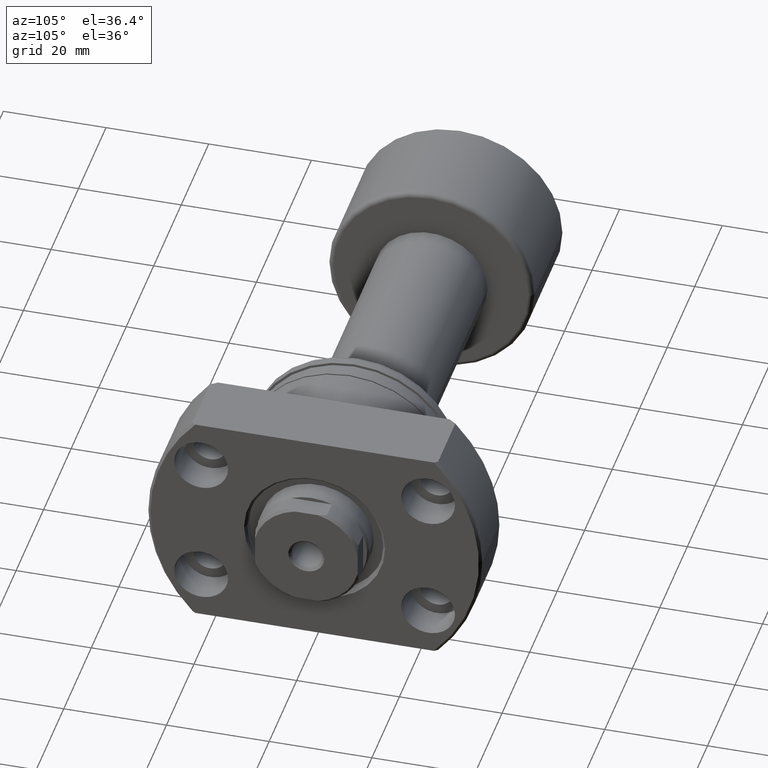
[diagram: clean part render]
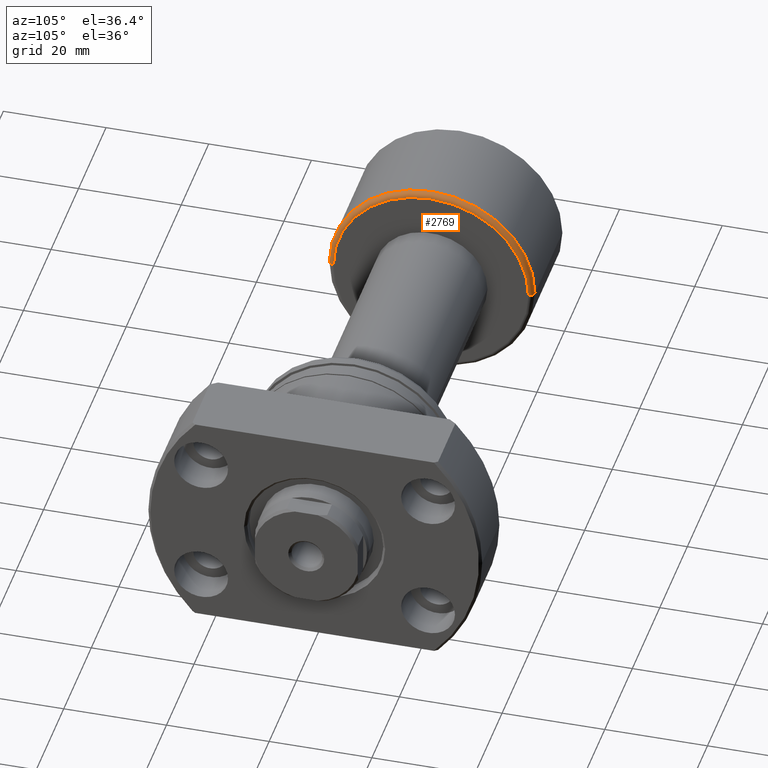
[diagram: same view with one face highlighted and labeled with its STEP entity id]
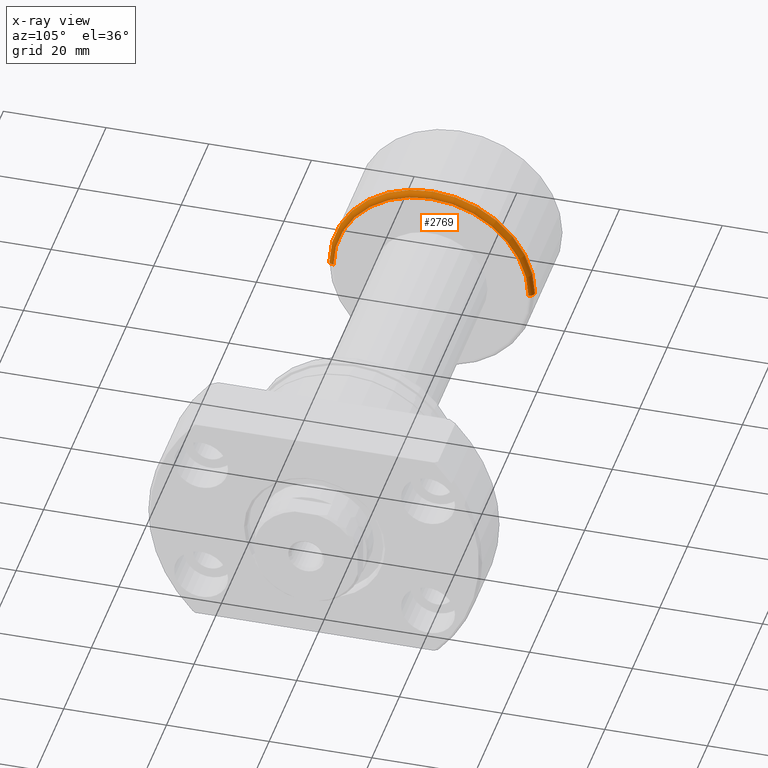
[diagram: x-ray of the same camera — body ghosted, the highlighted face saturated]
A machine part, auxiliary view. The second image highlights one B-rep face of the part: STEP entity #2769.
The next image is the same camera in x-ray: the body ghosted, the highlighted face saturated — about 0% of this face is hidden behind the body in this view.
In plain terms, the highlighted toroidal blend (fillet) surface has major radius 19 mm and minor (blend) radius 1 mm.
Its self-contained STEP definition (entity closure, byte-faithful):
#28 = CIRCLE ( 'NONE', #2680, 1.000000000000000888 ) ;
#157 = VERTEX_POINT ( 'NONE', #2027 ) ;
#429 = VERTEX_POINT ( 'NONE', #2825 ) ;
#492 = DIRECTION ( 'NONE',  ( 0.000000000000000000, 0.000000000000000000, -1.000000000000000000 ) ) ;
#573 = AXIS2_PLACEMENT_3D ( 'NONE', #639, #1639, #1315 ) ;
#587 = CARTESIAN_POINT ( 'NONE',  ( 22.39999999999999503, -19.00000000000000000, 0.000000000000000000 ) ) ;
#588 = ORIENTED_EDGE ( 'NONE', *, *, #1967, .T. ) ;
#624 = EDGE_CURVE ( 'NONE', #1568, #429, #1851, .T. ) ;
#639 = CARTESIAN_POINT ( 'NONE',  ( 21.39999999999999503, 2.288820569227800311E-16, 0.000000000000000000 ) ) ;
#669 = CARTESIAN_POINT ( 'NONE',  ( 21.39999999999999503, 19.00000000000000000, 2.326828918379970970E-15 ) ) ;
#673 = AXIS2_PLACEMENT_3D ( 'NONE', #669, #1671, #2332 ) ;
#700 = AXIS2_PLACEMENT_3D ( 'NONE', #2938, #1152, #3132 ) ;
#713 = ORIENTED_EDGE ( 'NONE', *, *, #624, .T. ) ;
#723 = CARTESIAN_POINT ( 'NONE',  ( 21.39999999999999503, -19.00000000000000000, 0.000000000000000000 ) ) ;
#892 = AXIS2_PLACEMENT_3D ( 'NONE', #1176, #2205, #2927 ) ;
#1152 = DIRECTION ( 'NONE',  ( -1.000000000000000000, -1.069542322069065801E-17, -0.000000000000000000 ) ) ;
#1176 = CARTESIAN_POINT ( 'NONE',  ( 21.39999999999999503, 0.000000000000000000, 0.000000000000000000 ) ) ;
#1315 = DIRECTION ( 'NONE',  ( 0.000000000000000000, -1.000000000000000000, 0.000000000000000000 ) ) ;
#1385 = ORIENTED_EDGE ( 'NONE', *, *, #3087, .F. ) ;
#1435 = EDGE_CURVE ( 'NONE', #1568, #2920, #28, .T. ) ;
#1568 = VERTEX_POINT ( 'NONE', #587 ) ;
#1639 = DIRECTION ( 'NONE',  ( -1.000000000000000000, -1.069542322069065801E-17, -0.000000000000000000 ) ) ;
#1659 = EDGE_LOOP ( 'NONE', ( #713, #588, #1385, #2876 ) ) ;
#1671 = DIRECTION ( 'NONE',  ( 1.309811581274509052E-33, -1.224646799147353207E-16, 1.000000000000000000 ) ) ;
#1851 = CIRCLE ( 'NONE', #700, 19.00000000000000000 ) ;
#1967 = EDGE_CURVE ( 'NONE', #429, #157, #2082, .T. ) ;
#2027 = CARTESIAN_POINT ( 'NONE',  ( 21.39999999999999503, 20.00000000000000000, 2.449293598294706513E-15 ) ) ;
#2082 = CIRCLE ( 'NONE', #673, 1.000000000000000888 ) ;
#2205 = DIRECTION ( 'NONE',  ( -1.000000000000000000, -1.069542322069065801E-17, -0.000000000000000000 ) ) ;
#2297 = TOROIDAL_SURFACE ( 'NONE', #892, 19.00000000000000000, 1.000000000000000888 ) ;
#2332 = DIRECTION ( 'NONE',  ( 0.000000000000000000, -1.000000000000000000, -1.224646799147353454E-16 ) ) ;
#2444 = FACE_OUTER_BOUND ( 'NONE', #1659, .T. ) ;
#2463 = CARTESIAN_POINT ( 'NONE',  ( 21.39999999999999503, -20.00000000000000000, 0.000000000000000000 ) ) ;
#2600 = CIRCLE ( 'NONE', #573, 20.00000000000000000 ) ;
#2680 = AXIS2_PLACEMENT_3D ( 'NONE', #723, #492, #2930 ) ;
#2769 = ADVANCED_FACE ( 'NONE', ( #2444 ), #2297, .T. ) ;
#2825 = CARTESIAN_POINT ( 'NONE',  ( 22.39999999999999503, 19.00000000000000000, 2.388061258337338939E-15 ) ) ;
#2876 = ORIENTED_EDGE ( 'NONE', *, *, #1435, .F. ) ;
#2920 = VERTEX_POINT ( 'NONE', #2463 ) ;
#2927 = DIRECTION ( 'NONE',  ( 1.069542322069065801E-17, -1.000000000000000000, 0.000000000000000000 ) ) ;
#2930 = DIRECTION ( 'NONE',  ( -1.000000000000000000, 0.000000000000000000, 0.000000000000000000 ) ) ;
#2938 = CARTESIAN_POINT ( 'NONE',  ( 22.39999999999999503, 2.395774801434707246E-16, 0.000000000000000000 ) ) ;
#3087 = EDGE_CURVE ( 'NONE', #2920, #157, #2600, .T. ) ;
#3132 = DIRECTION ( 'NONE',  ( 0.000000000000000000, -1.000000000000000000, 0.000000000000000000 ) ) ;